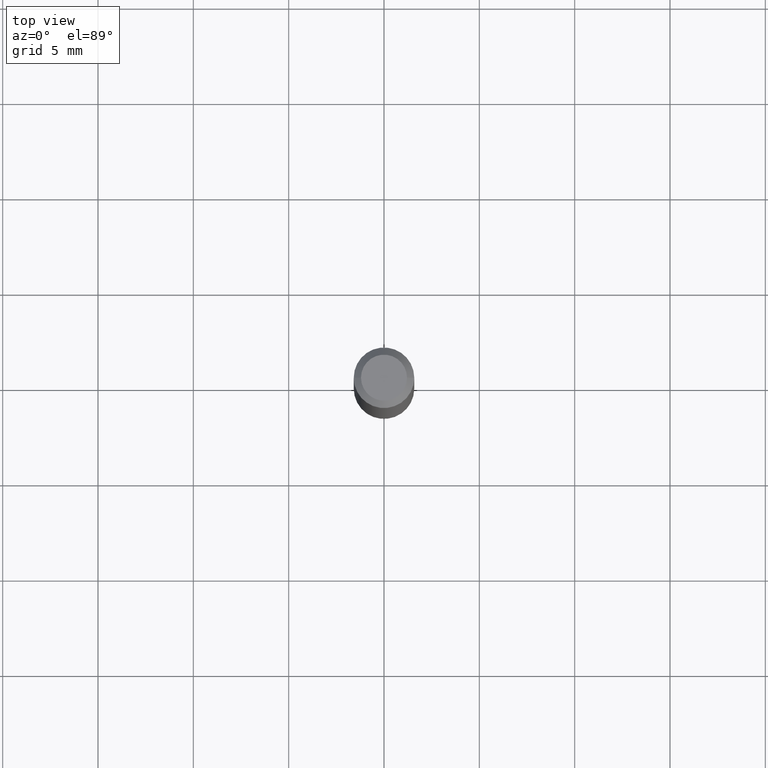
[diagram: clean part render]
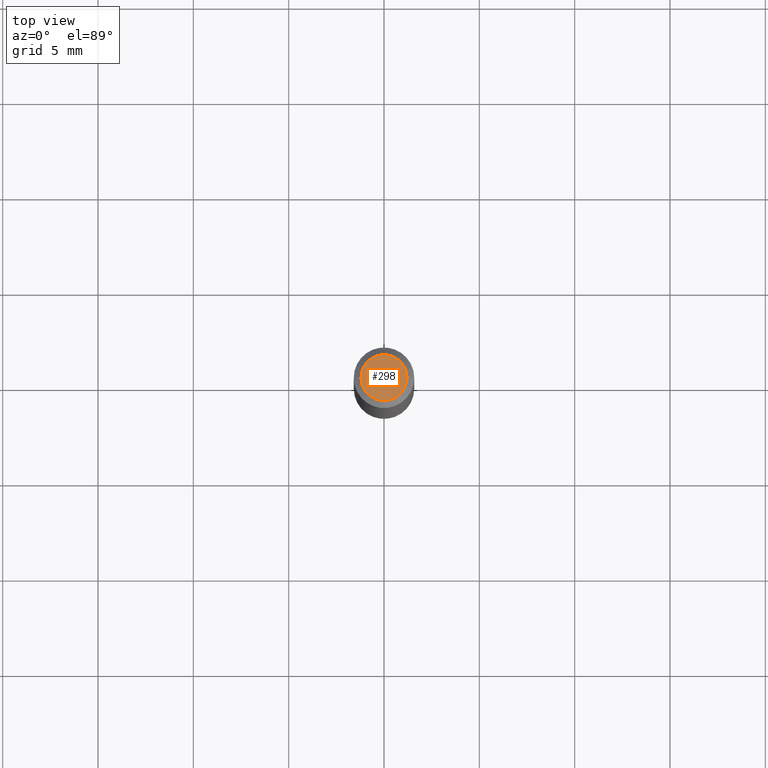
[diagram: same view with one face highlighted and labeled with its STEP entity id]
A machine part, top view. The second image highlights one B-rep face of the part: STEP entity #298.
In plain terms, the highlighted planar face has unit normal (0, -0, -1).
Its self-contained STEP definition (entity closure, byte-faithful):
#6 = AXIS2_PLACEMENT_3D ( 'NONE', #20, #425, #222 ) ;
#20 = CARTESIAN_POINT ( 'NONE',  ( -6.680649051745406845E-45, 9.538196290434862081E-31, 2.731847993664263218E-16 ) ) ;
#28 = CARTESIAN_POINT ( 'NONE',  ( 0.04750000000000000749, -4.035134999187568762E-16, 2.731847993664288856E-16 ) ) ;
#57 = EDGE_LOOP ( 'NONE', ( #459, #336 ) ) ;
#120 = EDGE_CURVE ( 'NONE', #461, #128, #233, .T. ) ;
#128 = VERTEX_POINT ( 'NONE', #391 ) ;
#222 = DIRECTION ( 'NONE',  ( 1.000000000000000000, -6.982962677686266711E-15, 4.852736867747365086E-29 ) ) ;
#233 = CIRCLE ( 'NONE', #240, 0.04750000000000000749 ) ;
#240 = AXIS2_PLACEMENT_3D ( 'NONE', #343, #263, #429 ) ;
#255 = DIRECTION ( 'NONE',  ( -1.000000000000000000, 6.982962677686265922E-15, -4.876176775795935793E-29 ) ) ;
#263 = DIRECTION ( 'NONE',  ( -2.445468806185136597E-29, 3.491481338843145583E-15, 1.000000000000000000 ) ) ;
#275 = AXIS2_PLACEMENT_3D ( 'NONE', #295, #456, #255 ) ;
#289 = FACE_OUTER_BOUND ( 'NONE', #57, .T. ) ;
#295 = CARTESIAN_POINT ( 'NONE',  ( 3.316907271900976589E-16, 0.04750000000000000749, -2.925296391183627249E-17 ) ) ;
#298 = ADVANCED_FACE ( 'NONE', ( #289 ), #369, .F. ) ;
#336 = ORIENTED_EDGE ( 'NONE', *, *, #120, .T. ) ;
#343 = CARTESIAN_POINT ( 'NONE',  ( -6.680649051745406845E-45, 9.538196290434862081E-31, 2.731847993664263218E-16 ) ) ;
#369 = PLANE ( 'NONE',  #275 ) ;
#379 = CIRCLE ( 'NONE', #6, 0.04750000000000000749 ) ;
#391 = CARTESIAN_POINT ( 'NONE',  ( -0.04750000000000000749, 3.578768372314221353E-16, 2.731847993664239060E-16 ) ) ;
#425 = DIRECTION ( 'NONE',  ( -2.445468806185136597E-29, 3.491481338843145583E-15, 1.000000000000000000 ) ) ;
#429 = DIRECTION ( 'NONE',  ( 1.000000000000000000, -6.982962677686266711E-15, 4.852736867747365086E-29 ) ) ;
#456 = DIRECTION ( 'NONE',  ( 2.438088387897960049E-29, -3.491481338843145188E-15, -1.000000000000000000 ) ) ;
#459 = ORIENTED_EDGE ( 'NONE', *, *, #473, .T. ) ;
#461 = VERTEX_POINT ( 'NONE', #28 ) ;
#473 = EDGE_CURVE ( 'NONE', #128, #461, #379, .T. ) ;